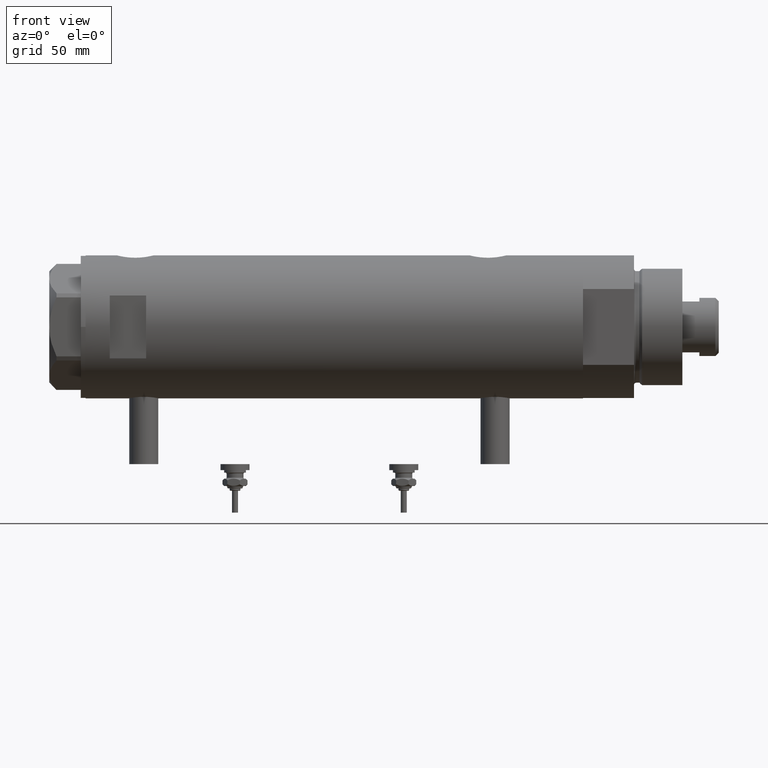
[diagram: clean part render]
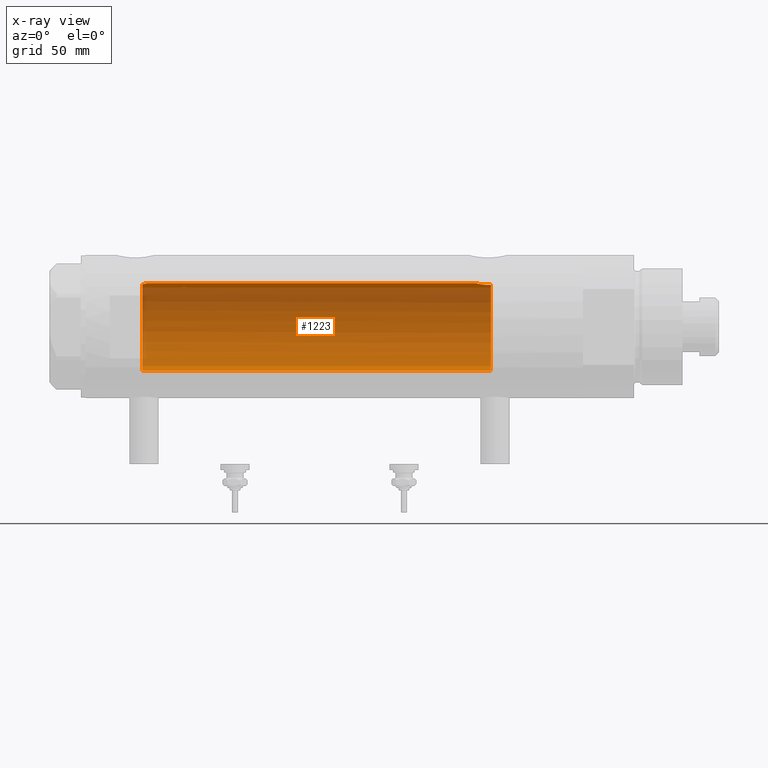
[diagram: x-ray — body ghosted, one internal face saturated and labeled with its STEP entity id]
A machine part, front view, then the same camera in x-ray: the body is ghosted and one INTERNAL B-rep face — a face not visible from any outside direction — is saturated and labeled: STEP entity #1223.
In plain terms, the highlighted cylindrical surface (partial cylindrical patch) has radius 18 mm, axis along (1, 0, -0).
Its self-contained STEP definition (entity closure, byte-faithful):
#36 = DIRECTION ( 'NONE',  ( 0.000000000000000000, 0.000000000000000000, -1.000000000000000000 ) ) ;
#209 = ORIENTED_EDGE ( 'NONE', *, *, #487, .T. ) ;
#219 = EDGE_CURVE ( 'NONE', #4609, #5562, #847, .T. ) ;
#230 = B_SPLINE_CURVE_WITH_KNOTS ( 'NONE', 3,
 ( #5397, #4535, #1336, #3222, #2245, #3663, #3612, #5514, #4975, #1417, #399, #977, #518, #1370, #1838, #4006, #453, #5849, #1307, #3103, #848, #2697, #2666, #883, #4482, #5878, #4509 ),
 .UNSPECIFIED., .F., .F.,
 ( 4, 2, 2, 2, 2, 2, 2, 2, 2, 2, 1, 2, 2, 4 ),
 ( 0.01528157848519460030, 0.01583467956029640383, 0.01638778063539820737, 0.01749398278560182138, 0.01804708386070362838, 0.01860018493580543539, 0.01915328601090724239, 0.01970638708600904940, 0.02081258923621265994, 0.02136569031131446000, 0.02191879138641625313, 0.02247189246151805320, 0.02302499353661984632, 0.02413119568682348115 ),
 .UNSPECIFIED. ) ;
#359 = CARTESIAN_POINT ( 'NONE',  ( 17.68814035493779002, 3.348626323852659681, 78.55183600219631046 ) ) ;
#369 = ORIENTED_EDGE ( 'NONE', *, *, #5775, .F. ) ;
#399 = CARTESIAN_POINT ( 'NONE',  ( 17.76085061188611292, 2.927954048074874027, -59.51043039029092796 ) ) ;
#450 = DIRECTION ( 'NONE',  ( -0.000000000000000000, -0.000000000000000000, -1.000000000000000000 ) ) ;
#453 = CARTESIAN_POINT ( 'NONE',  ( 17.49030773641653269, 4.256160900234554845, -61.01469509681786718 ) ) ;
#456 = EDGE_LOOP ( 'NONE', ( #1188, #369, #3657, #209, #4764, #4439 ) ) ;
#462 = DIRECTION ( 'NONE',  ( 1.000000000000000000, 0.000000000000000000, 0.000000000000000000 ) ) ;
#487 = EDGE_CURVE ( 'NONE', #5562, #3388, #5484, .T. ) ;
#518 = CARTESIAN_POINT ( 'NONE',  ( 17.68656644271517209, 3.347025706529860756, -59.86453774950908979 ) ) ;
#735 = CARTESIAN_POINT ( 'NONE',  ( 17.58783030962034033, 3.829911878881842480, 79.10000000000000853 ) ) ;
#840 = CARTESIAN_POINT ( 'NONE',  ( 18.00000000000000000, 5.958021437579254357E-16, -58.53499999999998238 ) ) ;
#847 = CIRCLE ( 'NONE', #1523, 18.00000000000000000 ) ;
#848 = CARTESIAN_POINT ( 'NONE',  ( 17.35631194664785681, 4.771042759406569189, -62.39667763205950024 ) ) ;
#883 = CARTESIAN_POINT ( 'NONE',  ( 17.32928165965088141, 4.867855194001447394, -63.31899018256648048 ) ) ;
#939 = CARTESIAN_POINT ( 'NONE',  ( 17.83158514913444748, 2.461498934476316958, 77.89965995681278343 ) ) ;
#977 = CARTESIAN_POINT ( 'NONE',  ( 17.71174132276681945, 3.211689381115077957, -59.74121359250869290 ) ) ;
#1002 = CARTESIAN_POINT ( 'NONE',  ( 17.89217382667230183, 1.974183297225234002, 77.64981302266164676 ) ) ;
#1188 = ORIENTED_EDGE ( 'NONE', *, *, #2994, .F. ) ;
#1223 = ADVANCED_FACE ( 'NONE', ( #2202 ), #4047, .F. ) ;
#1307 = CARTESIAN_POINT ( 'NONE',  ( 17.41328271218090151, 4.558641711475907243, -61.69087254718660773 ) ) ;
#1336 = CARTESIAN_POINT ( 'NONE',  ( 17.99716691696285764, 0.3685254503903822032, -58.54545042928658916 ) ) ;
#1370 = CARTESIAN_POINT ( 'NONE',  ( 17.63589737371338373, 3.604488512479874007, -60.12742655266249869 ) ) ;
#1417 = CARTESIAN_POINT ( 'NONE',  ( 17.78478726694684653, 2.779555353823087938, -59.40297143050465678 ) ) ;
#1523 = AXIS2_PLACEMENT_3D ( 'NONE', #1932, #5035, #462 ) ;
#1707 = B_SPLINE_CURVE_WITH_KNOTS ( 'NONE', 3,
 ( #4906, #4447, #359, #1745, #5394, #939, #2831, #1002, #4208, #4619, #3688, #2743, #5057, #3778 ),
 .UNSPECIFIED., .F., .F.,
 ( 4, 2, 2, 2, 2, 2, 4 ),
 ( 0.02614985543880322602, 0.02725214354003938771, 0.02780328759065748417, 0.02835443164127558063, 0.02890557569189367709, 0.02945671974251177008, 0.03055900784374796994 ),
 .UNSPECIFIED. ) ;
#1745 = CARTESIAN_POINT ( 'NONE',  ( 17.76196254920471773, 2.921230608637955584, 78.20535341986150968 ) ) ;
#1804 = VECTOR ( 'NONE', #450, 1000.000000000000000 ) ;
#1838 = CARTESIAN_POINT ( 'NONE',  ( 17.61032289555864949, 3.726910670425183980, -60.26756985850230564 ) ) ;
#1897 = EDGE_CURVE ( 'NONE', #3388, #2100, #1910, .T. ) ;
#1910 = CIRCLE ( 'NONE', #2670, 18.00000000000000000 ) ;
#1932 = CARTESIAN_POINT ( 'NONE',  ( 0.000000000000000000, 0.000000000000000000, 79.10000000000000853 ) ) ;
#2100 = VERTEX_POINT ( 'NONE', #2661 ) ;
#2202 = FACE_OUTER_BOUND ( 'NONE', #456, .T. ) ;
#2245 = CARTESIAN_POINT ( 'NONE',  ( 17.97733715731491344, 0.9209699998971196955, -58.61935966604425374 ) ) ;
#2316 = CARTESIAN_POINT ( 'NONE',  ( -18.00000000000000000, 0.000000000000000000, -64.59999999999999432 ) ) ;
#2661 = CARTESIAN_POINT ( 'NONE',  ( 17.37157951943346035, 4.714681855650494136, -64.59999999999999432 ) ) ;
#2666 = CARTESIAN_POINT ( 'NONE',  ( 17.33118376015917050, 4.861110225087390546, -63.13112109378172931 ) ) ;
#2670 = AXIS2_PLACEMENT_3D ( 'NONE', #4719, #36, #2839 ) ;
#2697 = CARTESIAN_POINT ( 'NONE',  ( 17.34085862114804044, 4.826483754267692383, -62.76145238513610991 ) ) ;
#2743 = CARTESIAN_POINT ( 'NONE',  ( 17.98843015915092280, 0.7391836159806570716, 77.27731130524776404 ) ) ;
#2831 = CARTESIAN_POINT ( 'NONE',  ( 17.85293122918850628, 2.302201220737772669, 77.81031080804812916 ) ) ;
#2839 = DIRECTION ( 'NONE',  ( -1.000000000000000000, 0.000000000000000000, 0.000000000000000000 ) ) ;
#2911 = CARTESIAN_POINT ( 'NONE',  ( 18.00000000000000000, 0.000000000000000000, 77.23499999999998522 ) ) ;
#2994 = EDGE_CURVE ( 'NONE', #4537, #4335, #3237, .T. ) ;
#3103 = CARTESIAN_POINT ( 'NONE',  ( 17.38237957915197285, 4.675094569549006707, -62.04138980228256628 ) ) ;
#3113 = DIRECTION ( 'NONE',  ( -0.000000000000000000, -0.000000000000000000, -1.000000000000000000 ) ) ;
#3222 = CARTESIAN_POINT ( 'NONE',  ( 17.98587882862718246, 0.7362002489460840460, -58.58746722239204985 ) ) ;
#3237 = LINE ( 'NONE', #3654, #5330 ) ;
#3375 = CARTESIAN_POINT ( 'NONE',  ( -18.00000000000000000, 0.000000000000000000, 79.10000000000000853 ) ) ;
#3388 = VERTEX_POINT ( 'NONE', #2316 ) ;
#3612 = CARTESIAN_POINT ( 'NONE',  ( 17.91189082287940693, 1.809824880389075297, -58.86912370284668583 ) ) ;
#3652 = CARTESIAN_POINT ( 'NONE',  ( 0.000000000000000000, 0.000000000000000000, 102.5999999999999943 ) ) ;
#3654 = CARTESIAN_POINT ( 'NONE',  ( 18.00000000000000000, 2.204364238465235428E-15, 102.5999999999999943 ) ) ;
#3657 = ORIENTED_EDGE ( 'NONE', *, *, #219, .T. ) ;
#3663 = CARTESIAN_POINT ( 'NONE',  ( 17.94405978035182869, 1.463580074031385347, -58.74553017623721729 ) ) ;
#3688 = CARTESIAN_POINT ( 'NONE',  ( 17.95540531162507136, 1.279032093992340968, 77.40250861430338603 ) ) ;
#3778 = CARTESIAN_POINT ( 'NONE',  ( 18.00000000000000000, 0.000000000000000000, 77.23499999999998522 ) ) ;
#4006 = CARTESIAN_POINT ( 'NONE',  ( 17.53642083926970585, 4.065376572064633542, -60.70260027543616133 ) ) ;
#4047 = CYLINDRICAL_SURFACE ( 'NONE', #5058, 18.00000000000000000 ) ;
#4208 = CARTESIAN_POINT ( 'NONE',  ( 17.91007218376326193, 1.805463612197664158, 77.57866376881658255 ) ) ;
#4335 = VERTEX_POINT ( 'NONE', #840 ) ;
#4439 = ORIENTED_EDGE ( 'NONE', *, *, #4520, .F. ) ;
#4447 = CARTESIAN_POINT ( 'NONE',  ( 17.63704841537100876, 3.603891093161698755, 78.81145343596541863 ) ) ;
#4482 = CARTESIAN_POINT ( 'NONE',  ( 17.33262691996381477, 4.855935766715060886, -63.87488940890202826 ) ) ;
#4509 = CARTESIAN_POINT ( 'NONE',  ( 17.37157951943346035, 4.714681855650494136, -64.59999999999999432 ) ) ;
#4520 = EDGE_CURVE ( 'NONE', #4335, #2100, #230, .T. ) ;
#4535 = CARTESIAN_POINT ( 'NONE',  ( 18.00000000000000355, 0.1844036484100908535, -58.53499999999998238 ) ) ;
#4537 = VERTEX_POINT ( 'NONE', #2911 ) ;
#4609 = VERTEX_POINT ( 'NONE', #735 ) ;
#4619 = CARTESIAN_POINT ( 'NONE',  ( 17.94167814235965963, 1.458276351914876034, 77.45504464479716944 ) ) ;
#4719 = CARTESIAN_POINT ( 'NONE',  ( 0.000000000000000000, 0.000000000000000000, -64.59999999999999432 ) ) ;
#4764 = ORIENTED_EDGE ( 'NONE', *, *, #1897, .T. ) ;
#4906 = CARTESIAN_POINT ( 'NONE',  ( 17.58783030962034033, 3.829911878881842480, 79.10000000000000853 ) ) ;
#4932 = CARTESIAN_POINT ( 'NONE',  ( -18.00000000000000000, 0.000000000000000000, 102.5999999999999943 ) ) ;
#4975 = CARTESIAN_POINT ( 'NONE',  ( 17.83051055968252285, 2.469307448774139324, -59.20420614498792133 ) ) ;
#5035 = DIRECTION ( 'NONE',  ( 0.000000000000000000, 0.000000000000000000, 1.000000000000000000 ) ) ;
#5039 = DIRECTION ( 'NONE',  ( -1.000000000000000000, 0.000000000000000000, 0.000000000000000000 ) ) ;
#5057 = CARTESIAN_POINT ( 'NONE',  ( 17.99999999999999645, 0.3728474842072371231, 77.23499999999998522 ) ) ;
#5058 = AXIS2_PLACEMENT_3D ( 'NONE', #3652, #3113, #5039 ) ;
#5330 = VECTOR ( 'NONE', #5594, 1000.000000000000000 ) ;
#5394 = CARTESIAN_POINT ( 'NONE',  ( 17.78617492856929161, 2.770629413254915185, 78.09682049650069757 ) ) ;
#5397 = CARTESIAN_POINT ( 'NONE',  ( 18.00000000000000000, 5.958021437579254357E-16, -58.53499999999998238 ) ) ;
#5484 = LINE ( 'NONE', #4932, #1804 ) ;
#5514 = CARTESIAN_POINT ( 'NONE',  ( 17.85236636886078543, 2.306694554785104323, -59.11264586133006560 ) ) ;
#5562 = VERTEX_POINT ( 'NONE', #3375 ) ;
#5594 = DIRECTION ( 'NONE',  ( -0.000000000000000000, -0.000000000000000000, -1.000000000000000000 ) ) ;
#5775 = EDGE_CURVE ( 'NONE', #4609, #4537, #1707, .T. ) ;
#5849 = CARTESIAN_POINT ( 'NONE',  ( 17.43128843254318028, 4.489613141718955092, -61.51700003713169451 ) ) ;
#5878 = CARTESIAN_POINT ( 'NONE',  ( 17.34671983132638573, 4.806279138776327287, -64.24012329268312271 ) ) ;